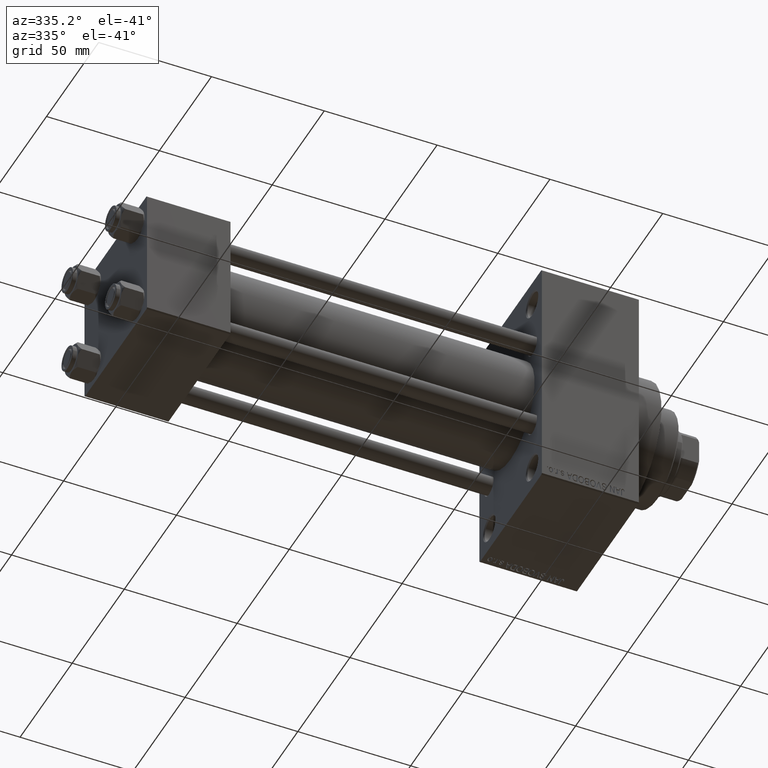
[diagram: clean part render]
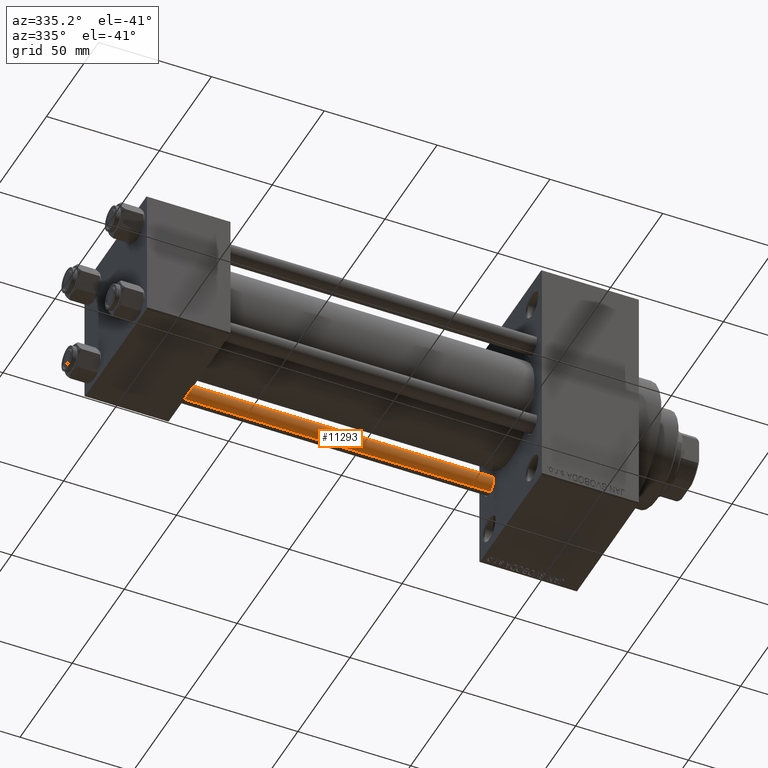
[diagram: same view with one face highlighted and labeled with its STEP entity id]
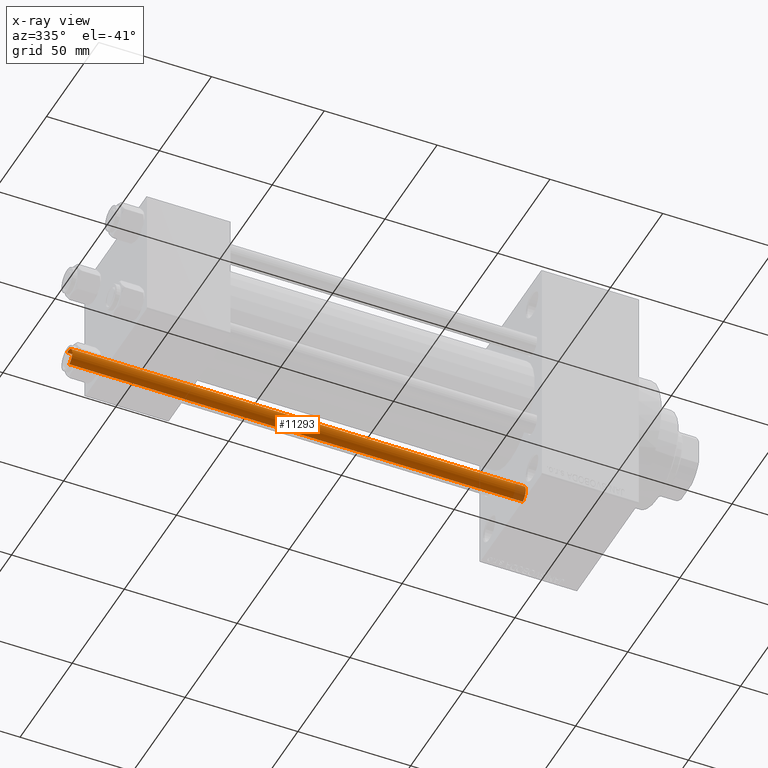
[diagram: x-ray of the same camera — body ghosted, the highlighted face saturated]
A machine part, auxiliary view. The second image highlights one B-rep face of the part: STEP entity #11293.
The next image is the same camera in x-ray: the body ghosted, the highlighted face saturated — about 2% of this face is hidden behind the body in this view.
In plain terms, the highlighted cylindrical surface (edge-blend (fillet) strip) has radius 4 mm, axis along (1, -0, 0).
Its self-contained STEP definition (entity closure, byte-faithful):
#457 = CIRCLE ( 'NONE', #29270, 4.000000000000000000 ) ;
#955 = EDGE_CURVE ( 'NONE', #5193, #2265, #19341, .T. ) ;
#2236 = DIRECTION ( 'NONE',  ( -0.000000000000000000, -0.000000000000000000, -1.000000000000000000 ) ) ;
#2265 = VERTEX_POINT ( 'NONE', #45930 ) ;
#2412 = EDGE_CURVE ( 'NONE', #42080, #2265, #457, .T. ) ;
#2787 = VECTOR ( 'NONE', #38390, 1000.000000000000000 ) ;
#4327 = CARTESIAN_POINT ( 'NONE',  ( 4.000000000000000000, 4.898587196589412829E-16, 201.5000000000000000 ) ) ;
#5193 = VERTEX_POINT ( 'NONE', #4327 ) ;
#5356 = AXIS2_PLACEMENT_3D ( 'NONE', #26055, #2236, #6995 ) ;
#6995 = DIRECTION ( 'NONE',  ( -1.000000000000000000, 0.000000000000000000, 0.000000000000000000 ) ) ;
#7781 = EDGE_LOOP ( 'NONE', ( #30495, #26652, #37422, #18373 ) ) ;
#10660 = CARTESIAN_POINT ( 'NONE',  ( 0.000000000000000000, 0.000000000000000000, 201.5000000000000000 ) ) ;
#11293 = ADVANCED_FACE ( 'NONE', ( #36599 ), #48881, .T. ) ;
#11556 = CARTESIAN_POINT ( 'NONE',  ( 4.000000000000000000, 4.898587196589412829E-16, 202.0000000000000000 ) ) ;
#17384 = AXIS2_PLACEMENT_3D ( 'NONE', #10660, #22193, #22686 ) ;
#18373 = ORIENTED_EDGE ( 'NONE', *, *, #2412, .T. ) ;
#19008 = CIRCLE ( 'NONE', #17384, 4.000000000000000000 ) ;
#19341 = LINE ( 'NONE', #11556, #2787 ) ;
#22193 = DIRECTION ( 'NONE',  ( 0.000000000000000000, 0.000000000000000000, -1.000000000000000000 ) ) ;
#22686 = DIRECTION ( 'NONE',  ( 1.000000000000000000, 0.000000000000000000, 0.000000000000000000 ) ) ;
#23131 = EDGE_CURVE ( 'NONE', #27405, #42080, #39220, .T. ) ;
#24864 = VECTOR ( 'NONE', #32943, 1000.000000000000000 ) ;
#25016 = DIRECTION ( 'NONE',  ( 1.000000000000000000, 0.000000000000000000, 0.000000000000000000 ) ) ;
#26055 = CARTESIAN_POINT ( 'NONE',  ( 0.000000000000000000, 0.000000000000000000, 202.0000000000000000 ) ) ;
#26652 = ORIENTED_EDGE ( 'NONE', *, *, #42385, .T. ) ;
#27405 = VERTEX_POINT ( 'NONE', #48667 ) ;
#29270 = AXIS2_PLACEMENT_3D ( 'NONE', #44558, #44072, #25016 ) ;
#30495 = ORIENTED_EDGE ( 'NONE', *, *, #955, .F. ) ;
#32943 = DIRECTION ( 'NONE',  ( -0.000000000000000000, -0.000000000000000000, -1.000000000000000000 ) ) ;
#36599 = FACE_OUTER_BOUND ( 'NONE', #7781, .T. ) ;
#37422 = ORIENTED_EDGE ( 'NONE', *, *, #23131, .T. ) ;
#38390 = DIRECTION ( 'NONE',  ( -0.000000000000000000, -0.000000000000000000, -1.000000000000000000 ) ) ;
#39220 = LINE ( 'NONE', #44724, #24864 ) ;
#42080 = VERTEX_POINT ( 'NONE', #42812 ) ;
#42385 = EDGE_CURVE ( 'NONE', #5193, #27405, #19008, .T. ) ;
#42812 = CARTESIAN_POINT ( 'NONE',  ( -4.000000000000000000, 0.000000000000000000, 0.5000000000000004441 ) ) ;
#44072 = DIRECTION ( 'NONE',  ( -0.000000000000000000, -0.000000000000000000, 1.000000000000000000 ) ) ;
#44558 = CARTESIAN_POINT ( 'NONE',  ( 0.000000000000000000, 0.000000000000000000, 0.5000000000000004441 ) ) ;
#44724 = CARTESIAN_POINT ( 'NONE',  ( -4.000000000000000000, 0.000000000000000000, 202.0000000000000000 ) ) ;
#45930 = CARTESIAN_POINT ( 'NONE',  ( 4.000000000000000000, 4.898587196589412829E-16, 0.5000000000000004441 ) ) ;
#48667 = CARTESIAN_POINT ( 'NONE',  ( -4.000000000000000000, 0.000000000000000000, 201.5000000000000000 ) ) ;
#48881 = CYLINDRICAL_SURFACE ( 'NONE', #5356, 4.000000000000000000 ) ;